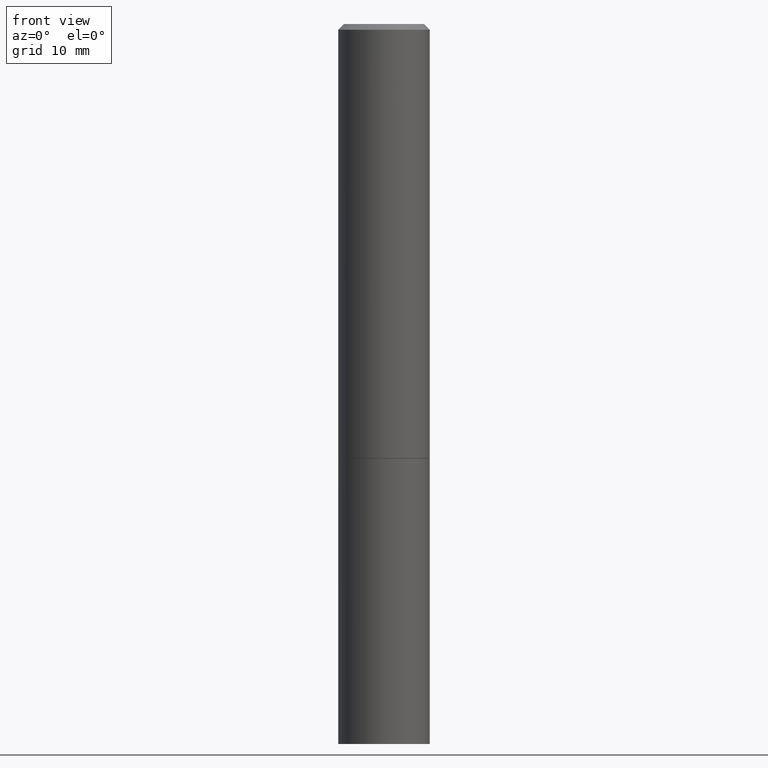
[diagram: clean part render]
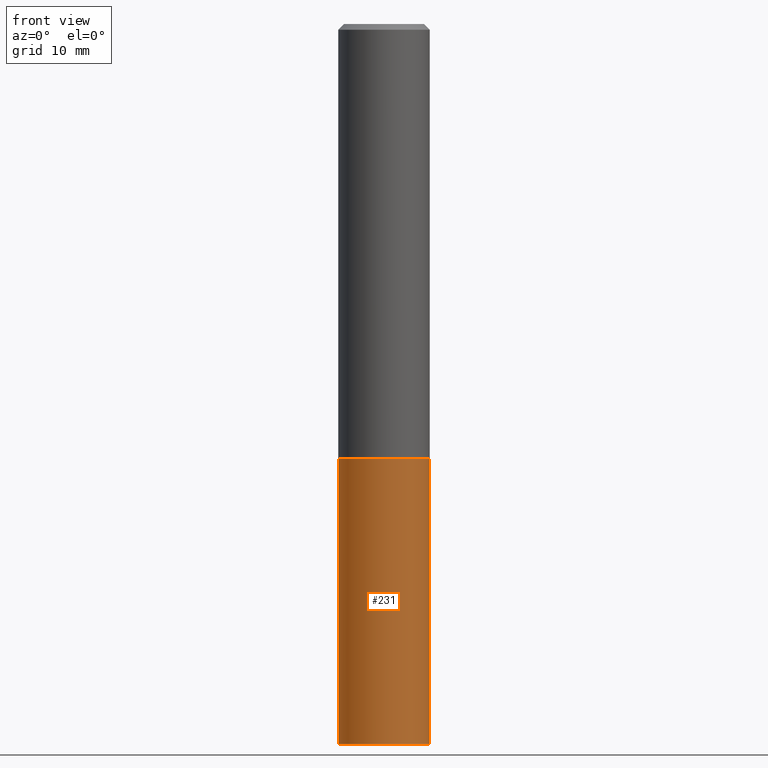
[diagram: same view with one face highlighted and labeled with its STEP entity id]
A machine part, front view. The second image highlights one B-rep face of the part: STEP entity #231.
In plain terms, the highlighted cylindrical surface (partial cylindrical patch) has radius 4.0005 mm, axis along (-0, 0, 1).
Its self-contained STEP definition (entity closure, byte-faithful):
#2 = CARTESIAN_POINT ( 'NONE',  ( 6.065496279980994755E-29, -8.659921164732655335E-15, -2.480300000000000171 ) ) ;
#3 = EDGE_CURVE ( 'NONE', #110, #333, #67, .T. ) ;
#24 = EDGE_LOOP ( 'NONE', ( #312, #113, #83, #331 ) ) ;
#32 = AXIS2_PLACEMENT_3D ( 'NONE', #143, #227, #339 ) ;
#33 = EDGE_CURVE ( 'NONE', #357, #333, #311, .T. ) ;
#36 = DIRECTION ( 'NONE',  ( 1.000000000000000000, -6.982962677686261977E-15, 0.000000000000000000 ) ) ;
#51 = CIRCLE ( 'NONE', #249, 0.1575000000000000011 ) ;
#61 = CARTESIAN_POINT ( 'NONE',  ( 0.1575000000000000011, -1.099816621735586889E-15, 7.679978421878598033E-30 ) ) ;
#62 = DIRECTION ( 'NONE',  ( -2.445468806185136597E-29, 3.491481338843145583E-15, 1.000000000000000000 ) ) ;
#67 = CIRCLE ( 'NONE', #334, 0.1575000000000000011 ) ;
#71 = EDGE_CURVE ( 'NONE', #364, #110, #170, .T. ) ;
#72 = CARTESIAN_POINT ( 'NONE',  ( 0.1575000000000000011, -9.759737786468242027E-15, -2.480300000000000171 ) ) ;
#83 = ORIENTED_EDGE ( 'NONE', *, *, #33, .T. ) ;
#105 = CARTESIAN_POINT ( 'NONE',  ( -0.1575000000000000011, -5.822483814998842744E-15, -2.480300000000000171 ) ) ;
#110 = VERTEX_POINT ( 'NONE', #255 ) ;
#113 = ORIENTED_EDGE ( 'NONE', *, *, #222, .T. ) ;
#119 = DIRECTION ( 'NONE',  ( 1.000000000000000000, -6.982962677686268288E-15, 0.000000000000000000 ) ) ;
#142 = DIRECTION ( 'NONE',  ( -2.445468806185136877E-29, 3.491481338843145188E-15, 1.000000000000000000 ) ) ;
#143 = CARTESIAN_POINT ( 'NONE',  ( 0.000000000000000000, 0.000000000000000000, 0.000000000000000000 ) ) ;
#170 = LINE ( 'NONE', #288, #194 ) ;
#194 = VECTOR ( 'NONE', #142, 39.37007874015748143 ) ;
#197 = DIRECTION ( 'NONE',  ( -2.445468806185136877E-29, 3.491481338843145188E-15, 1.000000000000000000 ) ) ;
#222 = EDGE_CURVE ( 'NONE', #364, #357, #51, .T. ) ;
#227 = DIRECTION ( 'NONE',  ( -2.445468806185136597E-29, 3.491481338843145583E-15, 1.000000000000000000 ) ) ;
#228 = DIRECTION ( 'NONE',  ( -2.445468806185136597E-29, 3.491481338843145583E-15, 1.000000000000000000 ) ) ;
#231 = ADVANCED_FACE ( 'NONE', ( #326 ), #341, .T. ) ;
#249 = AXIS2_PLACEMENT_3D ( 'NONE', #2, #228, #36 ) ;
#255 = CARTESIAN_POINT ( 'NONE',  ( -0.1575000000000000011, -5.822483814998842744E-15, -1.496000000000000441 ) ) ;
#287 = VECTOR ( 'NONE', #197, 39.37007874015748143 ) ;
#288 = CARTESIAN_POINT ( 'NONE',  ( -0.1575000000000000011, 1.119104808822157801E-15, -7.747322767151475583E-30 ) ) ;
#292 = CARTESIAN_POINT ( 'NONE',  ( 0.1575000000000000011, -6.323072704644934417E-15, -1.496000000000000441 ) ) ;
#309 = CARTESIAN_POINT ( 'NONE',  ( 3.658421334052965286E-29, -5.223256082909346937E-15, -1.496000000000000441 ) ) ;
#311 = LINE ( 'NONE', #61, #287 ) ;
#312 = ORIENTED_EDGE ( 'NONE', *, *, #71, .F. ) ;
#326 = FACE_OUTER_BOUND ( 'NONE', #24, .T. ) ;
#331 = ORIENTED_EDGE ( 'NONE', *, *, #3, .F. ) ;
#333 = VERTEX_POINT ( 'NONE', #292 ) ;
#334 = AXIS2_PLACEMENT_3D ( 'NONE', #309, #62, #119 ) ;
#339 = DIRECTION ( 'NONE',  ( 1.000000000000000000, -6.982962677686265922E-15, 4.876176775795935232E-29 ) ) ;
#341 = CYLINDRICAL_SURFACE ( 'NONE', #32, 0.1575000000000000011 ) ;
#357 = VERTEX_POINT ( 'NONE', #72 ) ;
#364 = VERTEX_POINT ( 'NONE', #105 ) ;